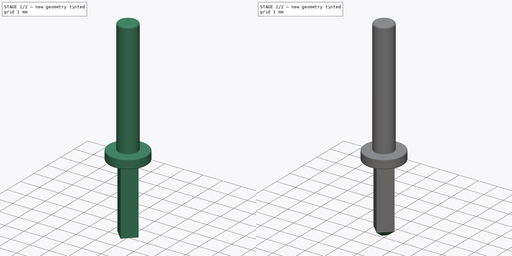
[diagram: build sequence overview — one tinted view per stage of 2, left to right]
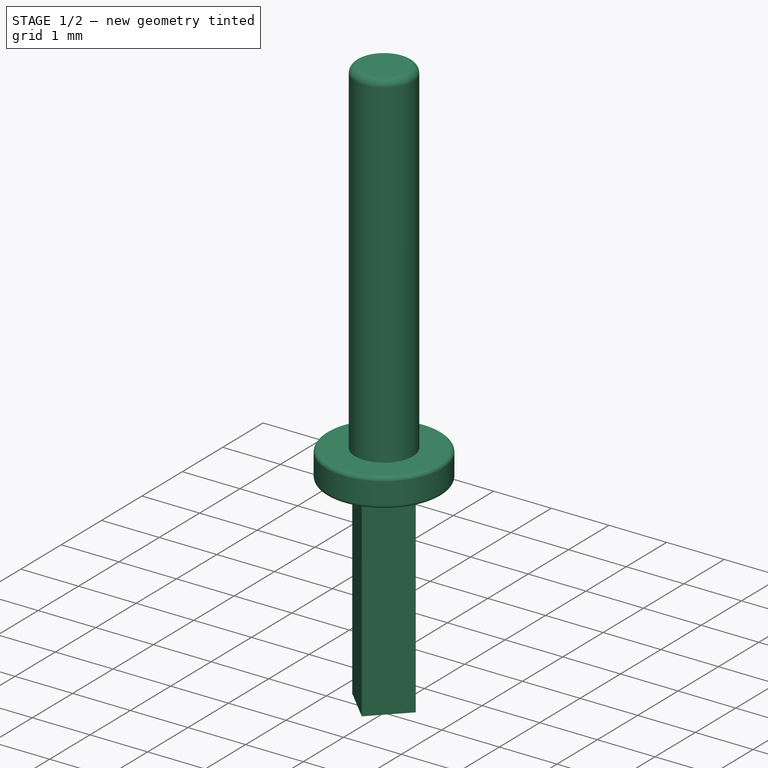
[diagram: stage 1 of 2 — iso view after this stage's code; geometry added in this stage tinted green]
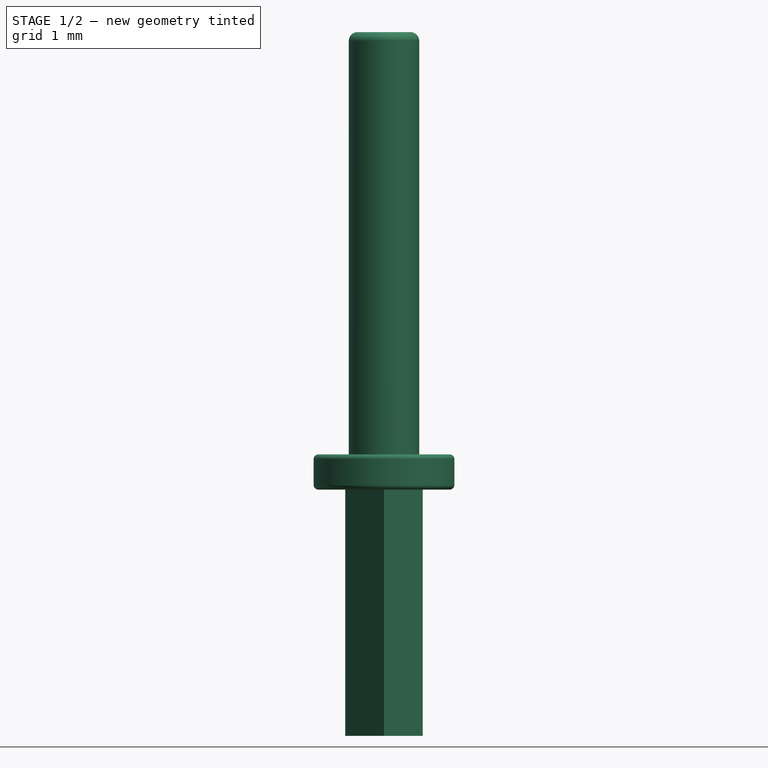
[diagram: stage 1 of 2 — front view after this stage's code; geometry added in this stage tinted green]
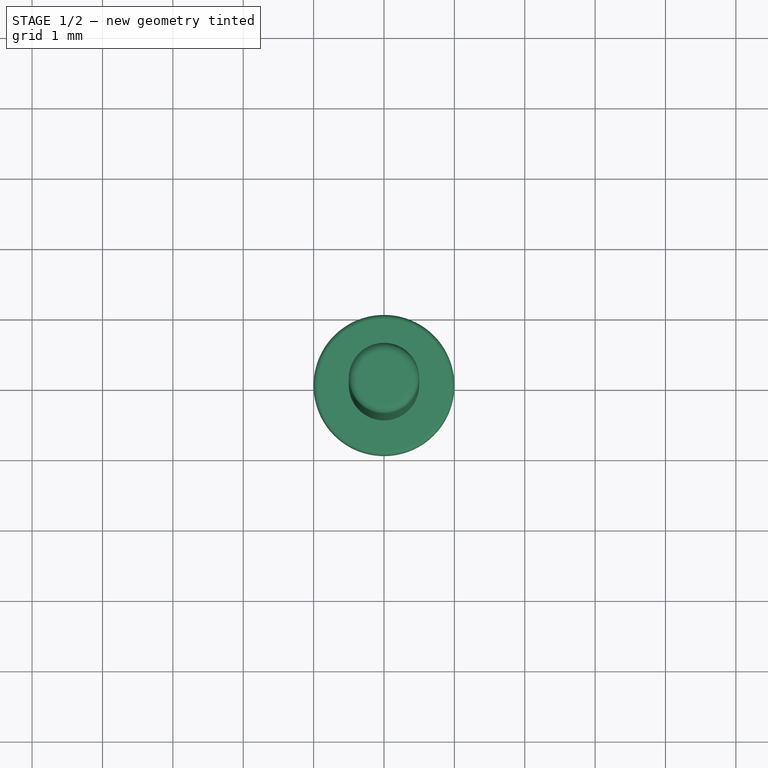
[diagram: stage 1 of 2 — top view after this stage's code; geometry added in this stage tinted green]
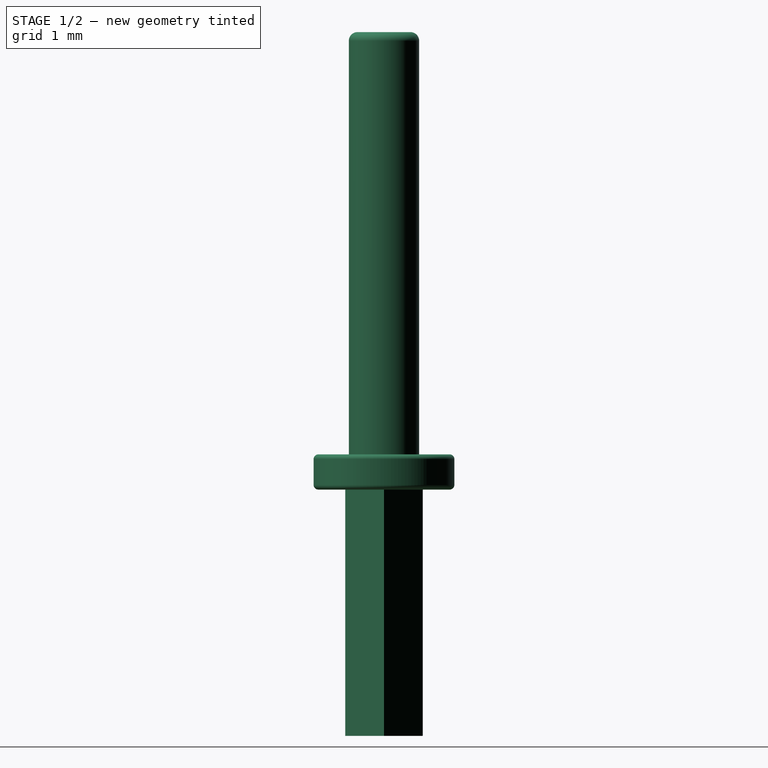
[diagram: stage 1 of 2 — right view after this stage's code; geometry added in this stage tinted green]
FCSTD DOCUMENT  (FreeCAD 0.17R12018 (Git))
Label: Pin_d1.0mm_L10.0mm
License: All rights reserved
LicenseURL: http://en.wikipedia.org/wiki/All_rights_reserved
objects: Sketcher::SketchObject×2, PartDesign::Revolution×1, Spreadsheet::Sheet×1, PartDesign::Pad×1, PartDesign::Chamfer×1, PartDesign::Body×1, App::Part×1
note: 8 computed .brp shape members not serialized (recipe doc carries the construction recipe); baked Part::Feature solids carry a one-line shape summary decoded from their .brp

FEATURE [Sketcher::SketchObject] Sketch
  MapMode = 5
  Placement = pos=(0,0,0) rot=(0,0.707107,0.707107;3.14159rad)
  Support = -> [XZ_Plane001]
  expr: Constraints[22] = dimensions.Ddisc / 2
  expr: Constraints[17] = dimensions.Dtop / 15
  expr: Constraints[12] = dimensions.Ltop
  expr: Constraints[14] = dimensions.Ldisc
  expr: Constraints[13] = dimensions.Dtop / 2
  expr: Constraints[20] = dimensions.Dtop / 15
  expr: Constraints[11] = dimensions.Dtop / 8
  sketch-geometry (9):
    g0: LineSegment StartX=0 StartY=0 StartZ=0 EndX=0.933333 EndY=0 EndZ=0
    g1: LineSegment StartX=1 StartY=0.0666667 StartZ=0 EndX=1 EndY=0.433333 EndZ=0
    g2: LineSegment StartX=0.933333 StartY=0.5 StartZ=0 EndX=0.5 EndY=0.5 EndZ=0
    g3: LineSegment StartX=0.5 StartY=0.5 StartZ=0 EndX=0.5 EndY=6.375 EndZ=0
    g4: LineSegment StartX=0.375 StartY=6.5 StartZ=0 EndX=0 EndY=6.5 EndZ=0
    g5: LineSegment StartX=0 StartY=6.5 StartZ=0 EndX=0 EndY=0 EndZ=0
    g6: ArcOfCircle CenterX=0.375 CenterY=6.375 CenterZ=0 NormalX=0 NormalY=0 NormalZ=1 Radius=0.125 StartAngle=0 EndAngle=1.5708
    g7: ArcOfCircle CenterX=0.933333 CenterY=0.433333 CenterZ=0 NormalX=0 NormalY=0 NormalZ=1 Radius=0.0666667 StartAngle=0 EndAngle=1.5708
    g8: ArcOfCircle CenterX=0.933333 CenterY=0.0666667 CenterZ=0 NormalX=0 NormalY=0 NormalZ=1 Radius=0.0666667 StartAngle=4.71239 EndAngle=6.28319
  constraints (23):
    c: Coincident(g0,g-1)
    c: Vertical(g1)
    c: Horizontal(g2)
    c: Coincident(g3,g2)
    c: Vertical(g3)
    c: PointOnObject(g4,g-2)
    c: Coincident(g5,g4)
    c: Coincident(g5,g-1)
    c: Horizontal(g4)
    c: Tangent(g3,g6) = -1.5708
    c: Tangent(g4,g6) = -1.5708
    c: Radius(g6) = 0.125
    c: DistanceY(g2,g4) = 6
    c: DistanceX(g-1,g2) = 0.5
    c: DistanceY(g-1,g2) = 0.5
    c: Tangent(g1,g7) = -1.5708
    c: Tangent(g2,g7) = -1.5708
    c: Radius(g7) = 0.0666667
    c: Tangent(g0,g8) = -1.5708
    c: Tangent(g1,g8) = -1.5708
    c: Radius(g8) = 0.0666667
    c: Horizontal(g0)
    c: DistanceX(g-1,g1) = 1
FEATURE [PartDesign::Revolution] Revolution
  Angle = 360
  Axis = (0,0,1)
  Base = (0,0,0)
  Placement = pos=(0,0,0) rot=(1,0,0;1.5708rad)
  Profile = -> Sketch
  ReferenceAxis = -> Sketch [V_Axis]
  Reversed = true
FEATURE [Spreadsheet::Sheet] Spreadsheet  label="dimensions"
  cells = A1="Dtop"; B1(Dtop)=1; A2="Ddisk"; B2(Ddisc)=2; A3="Dbottom"; B3(Dbottom)=1.1000000000000001; A4="Ltop"; B4(Ltop)=6; A5="Lbottom"; B5(Lbottom)=3.5; A6="Ldisc"; B6(Ldisc)=0.5
FEATURE [Sketcher::SketchObject] Sketch001
  MapMode = 5
  Support = -> [XY_Plane001]
  expr: Constraints[14] = dimensions.Dbottom
  expr: Constraints[13] = dimensions.Dbottom
  sketch-geometry (4):
    g0: LineSegment StartX=-0.55 StartY=0 StartZ=0 EndX=0 EndY=0.55 EndZ=0
    g1: LineSegment StartX=0 StartY=0.55 StartZ=0 EndX=0.55 EndY=0 EndZ=0
    g2: LineSegment StartX=0.55 StartY=0 StartZ=0 EndX=0 EndY=-0.55 EndZ=0
    g3: LineSegment StartX=0 StartY=-0.55 StartZ=0 EndX=-0.55 EndY=0 EndZ=0
  constraints (15):
    c: PointOnObject(g0,g-1)
    c: PointOnObject(g0,g-2)
    c: Coincident(g0,g1)
    c: PointOnObject(g1,g-1)
    c: Coincident(g1,g2)
    c: PointOnObject(g2,g-2)
    c: Coincident(g2,g3)
    c: Coincident(g3,g0)
    c: Parallel(g1,g3)
    c: Parallel(g0,g2)
    c: Equal(g1,g2)
    c: Equal(g1,g0)
    c: Equal(g0,g3)
    c: DistanceX(g0,g1) = 1.1
    c: DistanceY(g2,g0) = 1.1
FEATURE [PartDesign::Pad] Pad
  BaseFeature = -> Revolution
  Length = 3.5
  Length2 = 100
  Placement = pos=(0,0,0) rot=(1,0,0;1.5708rad)
  Profile = -> Sketch001
  Reversed = true
  Type = 0
  expr: Length = dimensions.Lbottom
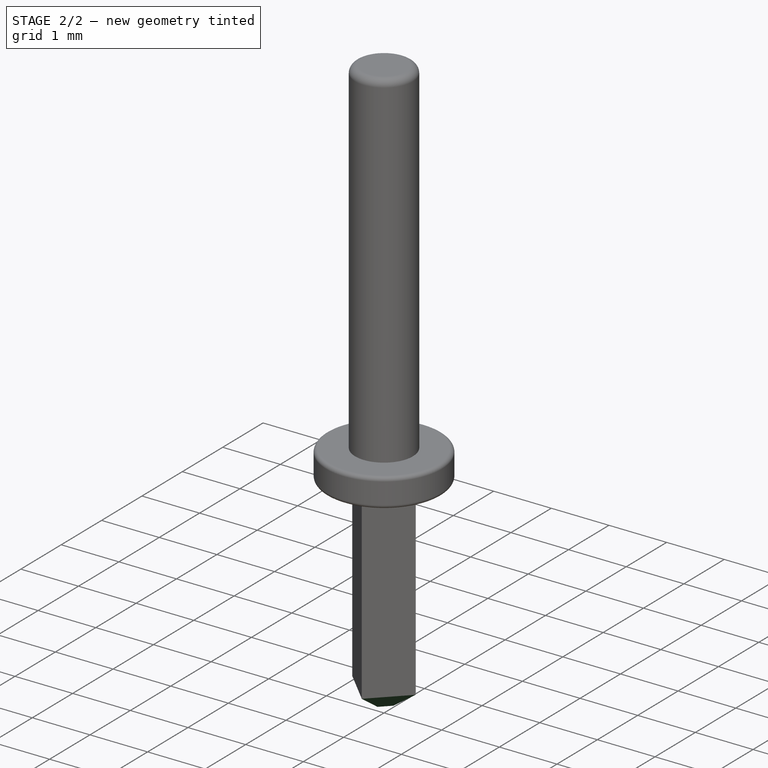
[diagram: stage 2 of 2 — iso view after this stage's code; geometry added in this stage tinted green]
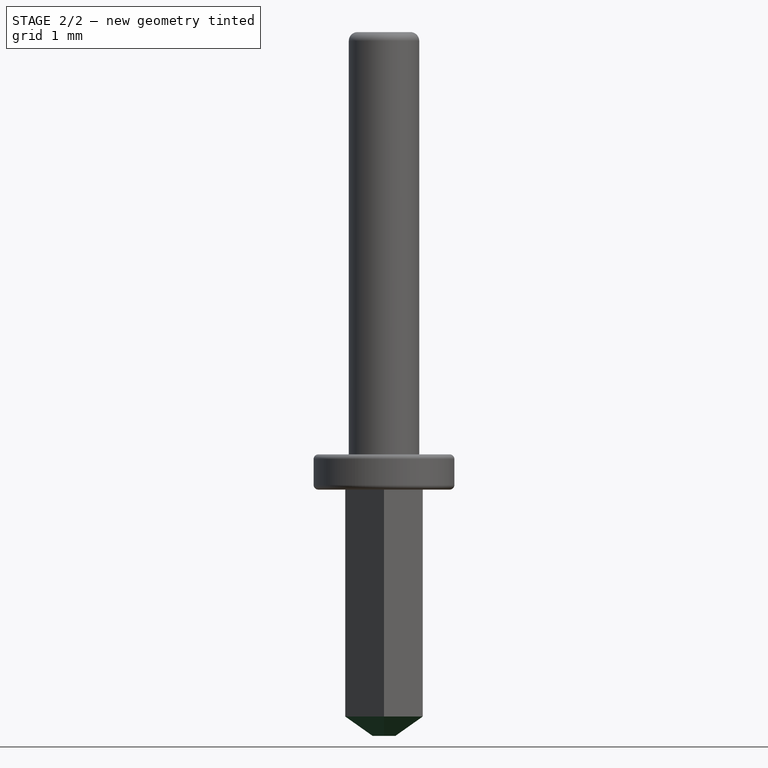
[diagram: stage 2 of 2 — front view after this stage's code; geometry added in this stage tinted green]
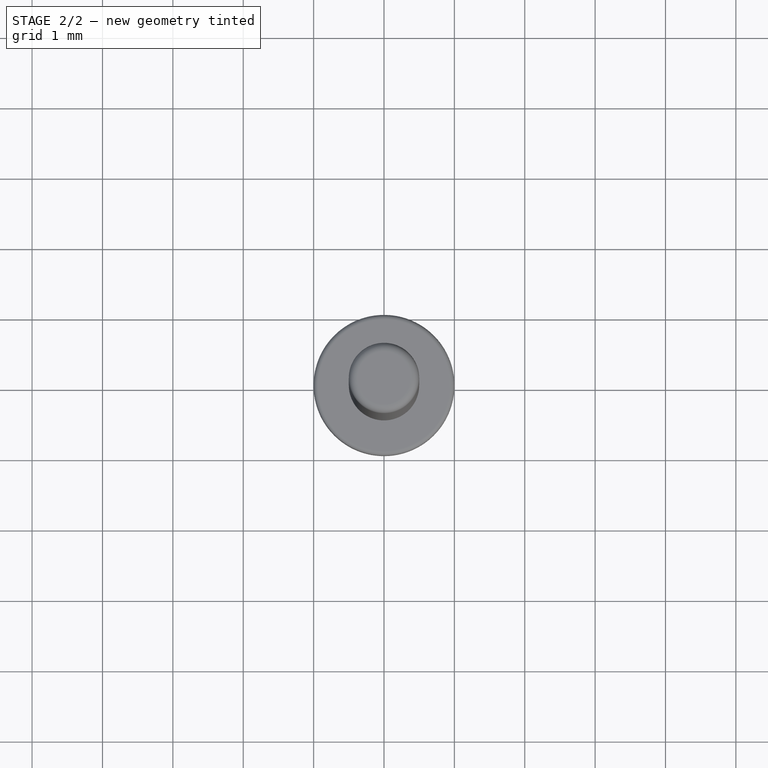
[diagram: stage 2 of 2 — top view after this stage's code; geometry added in this stage tinted green]
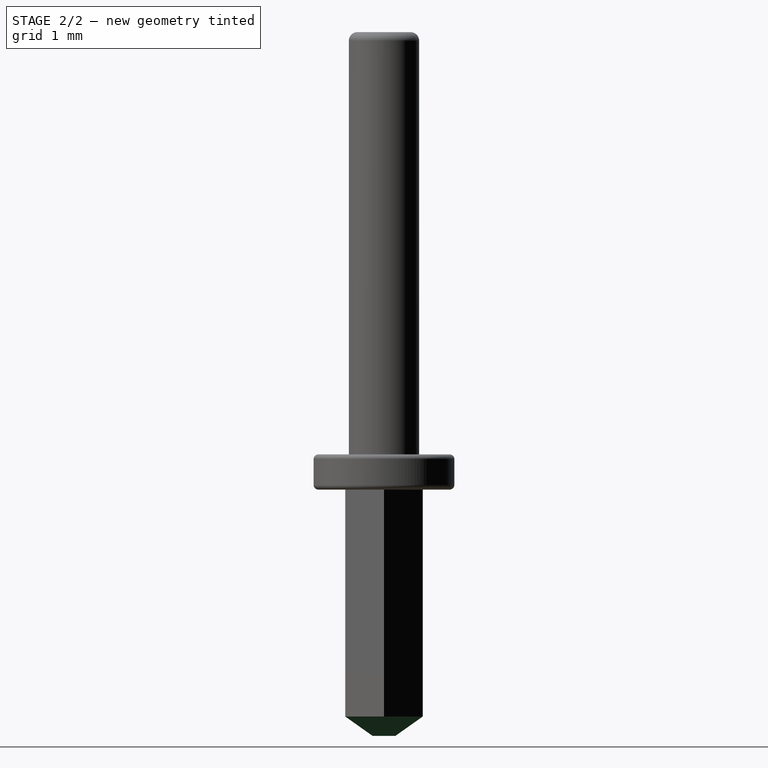
[diagram: stage 2 of 2 — right view after this stage's code; geometry added in this stage tinted green]
FEATURE [PartDesign::Chamfer] Chamfer
  Base = -> Pad [Edge11,Edge17,Edge16,Edge14]
  BaseFeature = -> Pad
  Placement = pos=(0,0,0) rot=(1,0,0;1.5708rad)
  Size = 0.275
  expr: Size = dimensions.Dbottom / 4
FEATURE [PartDesign::Body] ChamferBody  label="Pin_d1.0mm_L10.0mm"
  Group = -> [Sketch,Revolution,Sketch001,Pad,Chamfer]
  Origin = -> Origin001
  Tip = -> Chamfer
FEATURE [App::Part] Part
  Group = -> [ChamferBody]
  License = CC BY 3.0
  LicenseURL = http://creativecommons.org/licenses/by/3.0/
  Origin = -> Origin
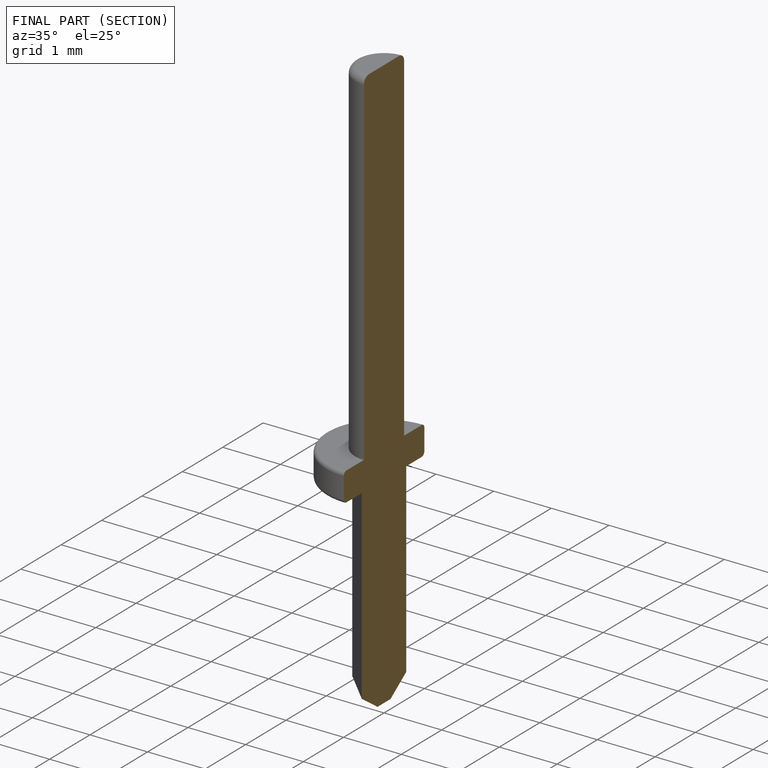
[diagram: finished part — half-section view (interior)]
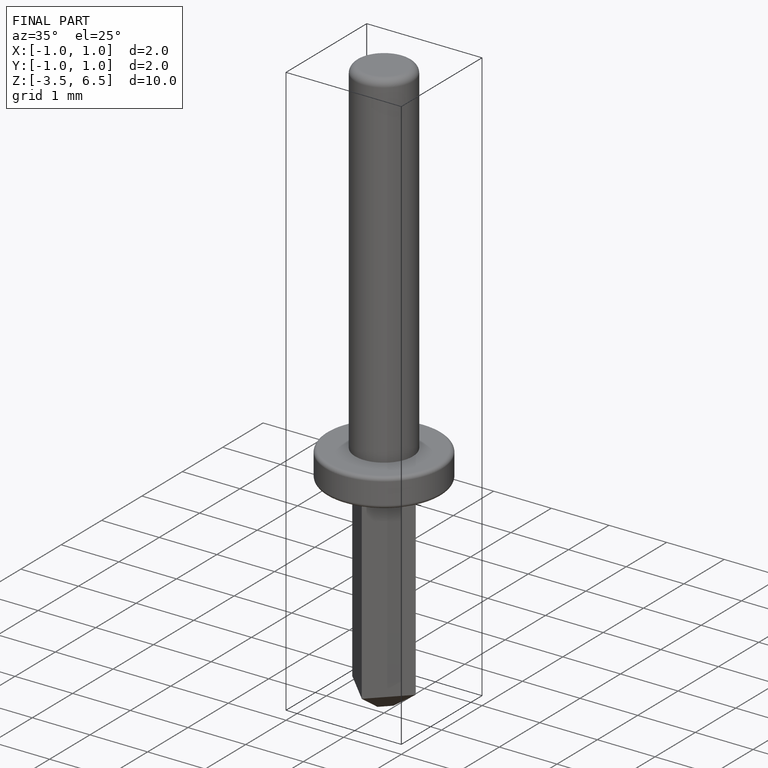
[diagram: finished part — iso view with bounding-box wireframe]
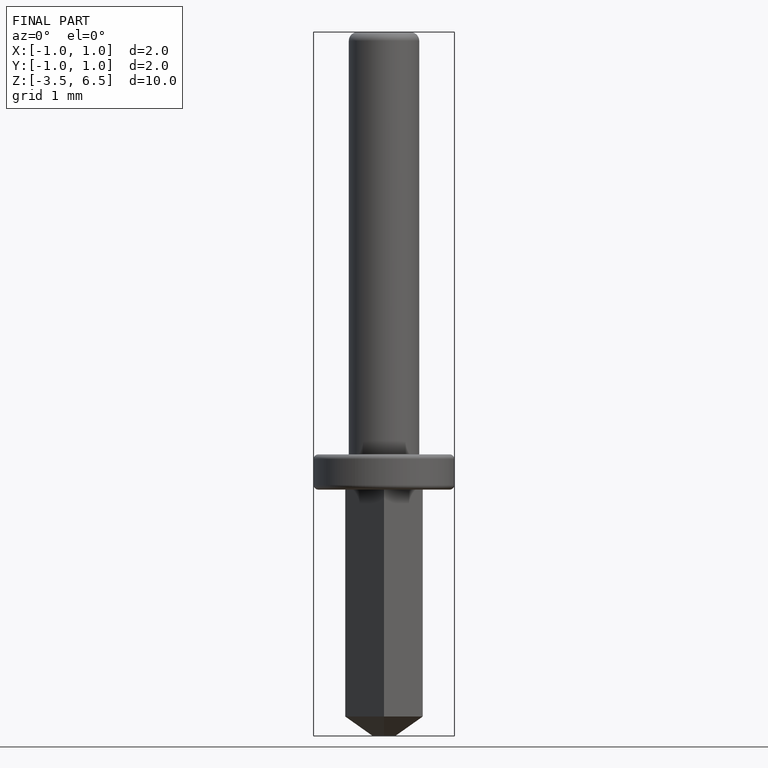
[diagram: finished part — front view with bounding-box wireframe]
